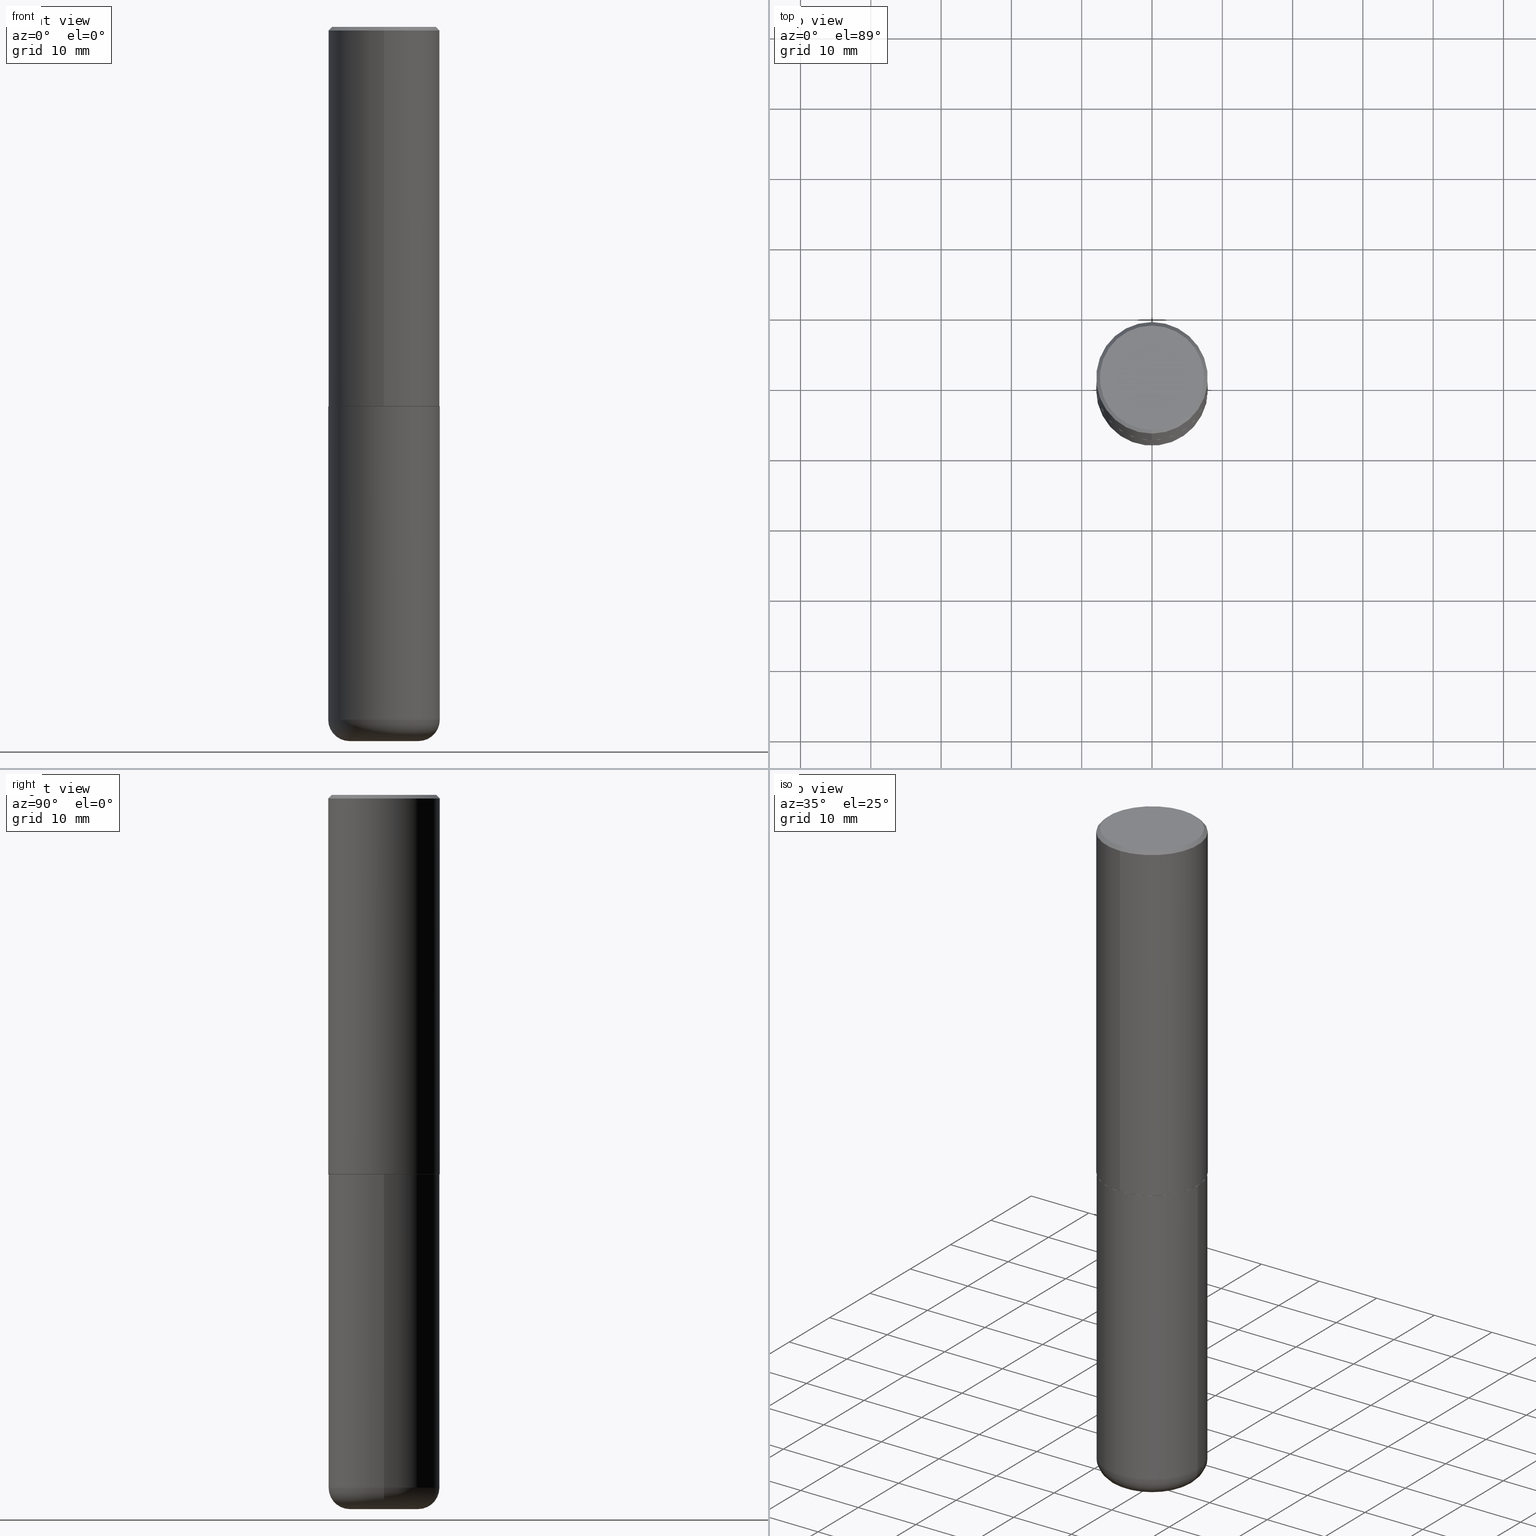
[diagram: canonical four-view strip — front | top / right | iso, engineering-drawing reading convention]
A machine part, canonical four-view strip (front | top / right | iso — engineering-drawing reading convention). The complete STEP part file that produces these views, byte-faithful:
ISO-10303-21;
HEADER;
FILE_DESCRIPTION (( 'STEP AP203' ),
    '1' );
FILE_NAME ('37614.STEP',
    '2024-03-02T05:58:51',
    ( '' ),
    ( '' ),
    'SwSTEP 2.0',
    'SolidWorks 2023',
    '' );
FILE_SCHEMA (( 'CONFIG_CONTROL_DESIGN' ));
ENDSEC;

DATA;
#1 = TOROIDAL_SURFACE ( 'NONE', #229, 0.1925000000000000044, 0.1200000000000001898 ) ;
#2 = CIRCLE ( 'NONE', #113, 0.3125000000000000000 ) ;
#3 = CARTESIAN_POINT ( 'NONE',  ( -0.1925000000000000044, -1.196231606724774300E-14, -4.000000000000000888 ) ) ;
#4 = DIRECTION ( 'NONE',  ( 1.000000000000000000, -6.982962677686276177E-15, 0.000000000000000000 ) ) ;
#5 = CIRCLE ( 'NONE', #230, 0.1925000000000000044 ) ;
#6 = ORIENTED_EDGE ( 'NONE', *, *, #251, .F. ) ;
#7 = DIRECTION ( 'NONE',  ( 1.000000000000000000, -6.982962677686269077E-15, 0.000000000000000000 ) ) ;
#8 = MANIFOLD_SOLID_BREP ( 'Body-Move/Copy2[2]', #398 ) ;
#9 = DIRECTION ( 'NONE',  ( -2.445468806185136597E-29, 3.491481338843145583E-15, 1.000000000000000000 ) ) ;
#10 = DATE_AND_TIME ( #111, #238 ) ;
#11 = DIRECTION ( 'NONE',  ( -2.444852431726452894E-29, 3.492364022149836358E-15, 1.000000000000000000 ) ) ;
#12 = PERSON_AND_ORGANIZATION ( #314, #163 ) ;
#13 = CC_DESIGN_DATE_AND_TIME_ASSIGNMENT ( #23, #270, ( #97 ) ) ;
#14 = CIRCLE ( 'NONE', #112, 0.3125000000000000000 ) ;
#15 = APPROVAL_PERSON_ORGANIZATION ( #122, #67, #94 ) ;
#16 = EDGE_LOOP ( 'NONE', ( #240, #408, #258, #337 ) ) ;
#17 = DIRECTION ( 'NONE',  ( -6.982962677686265922E-15, -1.000000000000000000, 3.507991003100177457E-15 ) ) ;
#18 = DATE_AND_TIME ( #198, #46 ) ;
#19 = ORIENTED_EDGE ( 'NONE', *, *, #306, .T. ) ;
#20 = ORIENTED_EDGE ( 'NONE', *, *, #247, .T. ) ;
#21 = AXIS2_PLACEMENT_3D ( 'NONE', #295, #11, #256 ) ;
#22 = AXIS2_PLACEMENT_3D ( 'NONE', #58, #183, #125 ) ;
#23 = DATE_AND_TIME ( #308, #144 ) ;
#24 = EDGE_CURVE ( 'NONE', #237, #273, #184, .T. ) ;
#25 = ORIENTED_EDGE ( 'NONE', *, *, #161, .F. ) ;
#26 = DIRECTION ( 'NONE',  ( -6.982962677686265133E-15, -1.000000000000000000, 3.492364022149836753E-15 ) ) ;
#27 = ADVANCED_FACE ( 'NONE', ( #317 ), #85, .T. ) ;
#28 = CIRCLE ( 'NONE', #280, 0.3114999999999999991 ) ;
#29 = DIRECTION ( 'NONE',  ( 0.000000000000000000, 0.000000000000000000, 1.000000000000000000 ) ) ;
#30 = DIRECTION ( 'NONE',  ( -6.982962677686265133E-15, -1.000000000000000000, 3.492364022149836358E-15 ) ) ;
#31 = CARTESIAN_POINT ( 'NONE',  ( -2.075300644325887493E-15, -0.2924999999999999822, 1.030311686326234990E-15 ) ) ;
#32 = DIRECTION ( 'NONE',  ( -2.445468806185136597E-29, 3.491481338843145583E-15, 1.000000000000000000 ) ) ;
#33 = ADVANCED_FACE ( 'NONE', ( #169 ), #48, .T. ) ;
#34 = COORDINATED_UNIVERSAL_TIME_OFFSET ( 5, 0, .BEHIND. ) ;
#35 = CARTESIAN_POINT ( 'NONE',  ( -2.150299018297948745E-46, 3.071607443834507134E-32, 8.795209847407834549E-18 ) ) ;
#36 = AXIS2_PLACEMENT_3D ( 'NONE', #369, #79, #284 ) ;
#37 = PERSON_AND_ORGANIZATION_ROLE ( 'design_supplier' ) ;
#38 = DIRECTION ( 'NONE',  ( 1.000000000000000000, -6.982962677686266711E-15, 4.876176775795936353E-29 ) ) ;
#39 = CC_DESIGN_PERSON_AND_ORGANIZATION_ASSIGNMENT ( #199, #170, ( #201 ) ) ;
#40 = ORIENTED_EDGE ( 'NONE', *, *, #390, .T. ) ;
#41 = DIRECTION ( 'NONE',  ( 4.937700262164541731E-15, 0.7071067811865442421, -0.7071067811865507924 ) ) ;
#42 = CALENDAR_DATE ( 2024, 2, 3 ) ;
#43 = CARTESIAN_POINT ( 'NONE',  ( 0.3125000000000000555, -1.572912343148836404E-14, -3.880000000000000338 ) ) ;
#44 = ORIENTED_EDGE ( 'NONE', *, *, #225, .F. ) ;
#45 = EDGE_CURVE ( 'NONE', #237, #50, #95, .T. ) ;
#46 = LOCAL_TIME ( 0, 58, 51.00000000000000000, #232 ) ;
#47 = CC_DESIGN_SECURITY_CLASSIFICATION ( #185, ( #385 ) ) ;
#48 = PLANE ( 'NONE',  #152 ) ;
#49 = ORIENTED_EDGE ( 'NONE', *, *, #190, .F. ) ;
#50 = VERTEX_POINT ( 'NONE', #403 ) ;
#51 = DATE_TIME_ROLE ( 'classification_date' ) ;
#52 = VERTEX_POINT ( 'NONE', #43 ) ;
#53 = DIRECTION ( 'NONE',  ( 1.000000000000000000, -6.982962677686269077E-15, 0.000000000000000000 ) ) ;
#54 = PLANE ( 'NONE',  #384 ) ;
#55 = CARTESIAN_POINT ( 'NONE',  ( 2.042516583223232540E-15, 0.2924999999999999822, -1.017118871555123169E-15 ) ) ;
#56 = CARTESIAN_POINT ( 'NONE',  ( 1.854023762560946993E-29, -2.531905987449679755E-14, -4.000000000000000000 ) ) ;
#57 = ORIENTED_EDGE ( 'NONE', *, *, #316, .T. ) ;
#58 = CARTESIAN_POINT ( 'NONE',  ( 9.488418967998330085E-29, -1.354694759471140570E-14, -3.880000000000000338 ) ) ;
#59 = CARTESIAN_POINT ( 'NONE',  ( 4.889704863452922148E-31, -6.984728044299695791E-17, -0.02000000000000006981 ) ) ;
#60 = CIRCLE ( 'NONE', #272, 0.3125000000000000000 ) ;
#61 = ORIENTED_EDGE ( 'NONE', *, *, #190, .T. ) ;
#62 = DIRECTION ( 'NONE',  ( -2.445468806185136597E-29, 3.491481338843145583E-15, 1.000000000000000000 ) ) ;
#63 = EDGE_LOOP ( 'NONE', ( #44, #6, #19, #374 ) ) ;
#64 = FACE_OUTER_BOUND ( 'NONE', #150, .T. ) ;
#65 = APPROVAL_PERSON_ORGANIZATION ( #266, #165, #338 ) ;
#66 = DIRECTION ( 'NONE',  ( -2.444852431726452894E-29, 3.492364022149836358E-15, 1.000000000000000000 ) ) ;
#67 = APPROVAL ( #241, 'UNSPECIFIED' ) ;
#68 = CARTESIAN_POINT ( 'NONE',  ( 5.196621213143414147E-29, -7.419397845041682046E-15, -2.124999999999999556 ) ) ;
#69 = ADVANCED_FACE ( 'NONE', ( #370 ), #267, .T. ) ;
#70 = CIRCLE ( 'NONE', #124, 0.1200000000000001482 ) ;
#71 = CONICAL_SURFACE ( 'NONE', #414, 0.3125000000000000000, 0.7853981633974471688 ) ;
#72 = ADVANCED_FACE ( 'NONE', ( #413 ), #221, .T. ) ;
#73 = PERSON_AND_ORGANIZATION ( #314, #163 ) ;
#74 = AXIS2_PLACEMENT_3D ( 'NONE', #200, #172, #292 ) ;
#75 = CIRCLE ( 'NONE', #327, 0.3125000000000000000 ) ;
#76 = VERTEX_POINT ( 'NONE', #93 ) ;
#77 = DIRECTION ( 'NONE',  ( 6.982962677686265922E-15, 1.000000000000000000, -3.492364022149836358E-15 ) ) ;
#78 = ORIENTED_EDGE ( 'NONE', *, *, #285, .F. ) ;
#79 = DIRECTION ( 'NONE',  ( -2.444852431726452894E-29, 3.492364022149836358E-15, 1.000000000000000000 ) ) ;
#80 = DIRECTION ( 'NONE',  ( -2.444852431726452894E-29, 3.492364022149836358E-15, 1.000000000000000000 ) ) ;
#81 = PERSON_AND_ORGANIZATION ( #314, #163 ) ;
#82 = CARTESIAN_POINT ( 'NONE',  ( 0.000000000000000000, 0.000000000000000000, 0.000000000000000000 ) ) ;
#83 = ORIENTED_EDGE ( 'NONE', *, *, #194, .T. ) ;
#84 = VECTOR ( 'NONE', #41, 39.37007874015748143 ) ;
#85 = CYLINDRICAL_SURFACE ( 'NONE', #195, 0.3125000000000000000 ) ;
#86 = ORIENTED_EDGE ( 'NONE', *, *, #259, .T. ) ;
#87 = CC_DESIGN_PERSON_AND_ORGANIZATION_ASSIGNMENT ( #145, #300, ( #185 ) ) ;
#88 = ADVANCED_FACE ( 'NONE', ( #218 ), #98, .F. ) ;
#89 = LINE ( 'NONE', #234, #341 ) ;
#90 = ORIENTED_EDGE ( 'NONE', *, *, #417, .T. ) ;
#91 = DIRECTION ( 'NONE',  ( 1.000000000000000000, 0.000000000000000000, 0.000000000000000000 ) ) ;
#92 = DIRECTION ( 'NONE',  ( -2.445468806185136597E-29, 3.491481338843145583E-15, 1.000000000000000000 ) ) ;
#93 = CARTESIAN_POINT ( 'NONE',  ( -0.3125000000000000000, -8.262726670626231579E-15, -2.124999999999999556 ) ) ;
#94 = APPROVAL_ROLE ( '' ) ;
#95 = CIRCLE ( 'NONE', #21, 0.3125000000000002776 ) ;
#96 = APPROVAL_PERSON_ORGANIZATION ( #12, #246, #339 ) ;
#97 = PRODUCT_DEFINITION ( 'UNKNOWN', '', #385, #336 ) ;
#98 = PLANE ( 'NONE',  #311 ) ;
#99 = DIRECTION ( 'NONE',  ( -2.444852431726452614E-29, 3.492364022149836358E-15, 1.000000000000000000 ) ) ;
#100 = CARTESIAN_POINT ( 'NONE',  ( 0.000000000000000000, 0.000000000000000000, 0.000000000000000000 ) ) ;
#101 = CARTESIAN_POINT ( 'NONE',  ( 4.889704863452922148E-31, -6.984728044299695791E-17, -0.02000000000000006981 ) ) ;
#102 = VECTOR ( 'NONE', #123, 39.37007874015748143 ) ;
#103 = CIRCLE ( 'NONE', #377, 0.3125000000000002776 ) ;
#104 = DIRECTION ( 'NONE',  ( -6.982962677686265922E-15, -1.000000000000000000, 3.496765431890253764E-15 ) ) ;
#105 = EDGE_CURVE ( 'NONE', #228, #211, #70, .T. ) ;
#106 = DIRECTION ( 'NONE',  ( -2.445468806185136597E-29, 3.491481338843145583E-15, 1.000000000000000000 ) ) ;
#107 = CIRCLE ( 'NONE', #255, 0.2924999999999999822 ) ;
#108 = ADVANCED_FACE ( 'NONE', ( #64 ), #54, .F. ) ;
#109 = PRODUCT_RELATED_PRODUCT_CATEGORY ( 'detail', '', ( #201 ) ) ;
#110 = CARTESIAN_POINT ( 'NONE',  ( 5.195311417418712329E-29, -7.421273547068401324E-15, -2.124999999999999556 ) ) ;
#111 = CALENDAR_DATE ( 2024, 2, 3 ) ;
#112 = AXIS2_PLACEMENT_3D ( 'NONE', #59, #80, #379 ) ;
#113 = AXIS2_PLACEMENT_3D ( 'NONE', #399, #92, #386 ) ;
#114 = CARTESIAN_POINT ( 'NONE',  ( 0.3125000000000000000, -9.601573681818640393E-15, -2.124999999999999556 ) ) ;
#115 = CARTESIAN_POINT ( 'NONE',  ( -2.175192874099219874E-15, -0.3115000000000074376, -2.124999999999998668 ) ) ;
#116 = SECURITY_CLASSIFICATION_LEVEL ( 'unclassified' ) ;
#117 = CC_DESIGN_PERSON_AND_ORGANIZATION_ASSIGNMENT ( #396, #37, ( #385 ) ) ;
#118 = EDGE_LOOP ( 'NONE', ( #213, #236, #214, #297 ) ) ;
#119 = DIRECTION ( 'NONE',  ( -6.982962677686266711E-15, -1.000000000000000000, 3.491481338843145583E-15 ) ) ;
#120 = AXIS2_PLACEMENT_3D ( 'NONE', #393, #32, #7 ) ;
#121 = ORIENTED_EDGE ( 'NONE', *, *, #390, .F. ) ;
#122 = PERSON_AND_ORGANIZATION ( #314, #163 ) ;
#123 = DIRECTION ( 'NONE',  ( -2.444852431726452614E-29, 3.492364022149836358E-15, 1.000000000000000000 ) ) ;
#124 = AXIS2_PLACEMENT_3D ( 'NONE', #208, #303, #400 ) ;
#125 = DIRECTION ( 'NONE',  ( 1.000000000000000000, -6.982962677686265922E-15, 4.883557194083112340E-29 ) ) ;
#126 = CC_DESIGN_APPROVAL ( #246, ( #97 ) ) ;
#127 = EDGE_LOOP ( 'NONE', ( #49, #78 ) ) ;
#128 = CARTESIAN_POINT ( 'NONE',  ( 0.000000000000000000, 0.000000000000000000, 0.000000000000000000 ) ) ;
#129 = DIRECTION ( 'NONE',  ( 6.982962677686265133E-15, 1.000000000000000000, -3.496765431890256920E-15 ) ) ;
#130 = CARTESIAN_POINT ( 'NONE',  ( -0.3125000000000000555, -1.132650154546109262E-14, -3.880000000000000338 ) ) ;
#131 = ADVANCED_FACE ( 'NONE', ( #307 ), #1, .T. ) ;
#132 = CIRCLE ( 'NONE', #120, 0.1925000000000000044 ) ;
#133 = CC_DESIGN_APPROVAL ( #165, ( #185 ) ) ;
#134 = FACE_OUTER_BOUND ( 'NONE', #309, .T. ) ;
#135 = DIRECTION ( 'NONE',  ( -2.444852431726452894E-29, 3.492364022149836358E-15, 1.000000000000000000 ) ) ;
#136 = CARTESIAN_POINT ( 'NONE',  ( 0.1925000000000000044, -1.531014567082719057E-14, -4.000000000000000888 ) ) ;
#137 = ADVANCED_FACE ( 'NONE', ( #404 ), #189, .T. ) ;
#138 = CARTESIAN_POINT ( 'NONE',  ( 2.182175836776958741E-15, 0.3124999999999999445, -0.02000000000000116268 ) ) ;
#139 = DIRECTION ( 'NONE',  ( -6.982962677686265133E-15, -1.000000000000000000, 3.492364022149836753E-15 ) ) ;
#140 = APPROVAL_DATE_TIME ( #18, #67 ) ;
#141 = DIRECTION ( 'NONE',  ( -6.982962677686265922E-15, -1.000000000000000000, 3.507991003100177457E-15 ) ) ;
#142 = DIRECTION ( 'NONE',  ( -1.000000000000000000, 6.982962677686265922E-15, -4.876176775795935793E-29 ) ) ;
#143 = APPROVAL_STATUS ( 'not_yet_approved' ) ;
#144 = LOCAL_TIME ( 0, 58, 51.00000000000000000, #34 ) ;
#145 = PERSON_AND_ORGANIZATION ( #314, #163 ) ;
#146 = ORIENTED_EDGE ( 'NONE', *, *, #375, .F. ) ;
#147 = EDGE_LOOP ( 'NONE', ( #175, #415, #40, #25 ) ) ;
#148 = CARTESIAN_POINT ( 'NONE',  ( -0.3125000000000000000, 2.220446049250313081E-15, -1.537167215704658232E-29 ) ) ;
#149 = EDGE_CURVE ( 'NONE', #261, #50, #265, .T. ) ;
#150 = EDGE_LOOP ( 'NONE', ( #373, #416 ) ) ;
#151 = APPROVAL_DATE_TIME ( #254, #165 ) ;
#152 = AXIS2_PLACEMENT_3D ( 'NONE', #56, #209, #380 ) ;
#153 = VECTOR ( 'NONE', #224, 39.37007874015748143 ) ;
#154 = DIRECTION ( 'NONE',  ( 2.444852431726452333E-29, -3.492364022149836358E-15, -1.000000000000000000 ) ) ;
#155 = ORIENTED_EDGE ( 'NONE', *, *, #149, .F. ) ;
#156 = DIRECTION ( 'NONE',  ( -6.982962677686265922E-15, -1.000000000000000000, 3.492364022149836358E-15 ) ) ;
#157 = CARTESIAN_POINT ( 'NONE',  ( 9.488418967998330085E-29, -1.354694759471140570E-14, -3.880000000000000338 ) ) ;
#158 = LOCAL_TIME ( 0, 58, 51.00000000000000000, #405 ) ;
#159 = EDGE_LOOP ( 'NONE', ( #83, #57 ) ) ;
#160 = ORIENTED_EDGE ( 'NONE', *, *, #375, .T. ) ;
#161 = EDGE_CURVE ( 'NONE', #273, #271, #14, .T. ) ;
#162 = CARTESIAN_POINT ( 'NONE',  ( 2.112346210000095838E-15, 0.2924999999999999822, -1.012721266631419361E-15 ) ) ;
#163 = ORGANIZATION ( 'UNSPECIFIED', 'UNSPECIFIED', '' ) ;
#164 = CARTESIAN_POINT ( 'NONE',  ( 2.216893335571564642E-15, 0.3114999999999925606, -2.125000000000000888 ) ) ;
#165 = APPROVAL ( #143, 'UNSPECIFIED' ) ;
#166 = AXIS2_PLACEMENT_3D ( 'NONE', #282, #320, #30 ) ;
#167 = ADVANCED_FACE ( 'NONE', ( #344 ), #260, .F. ) ;
#168 = ORIENTED_EDGE ( 'NONE', *, *, #360, .T. ) ;
#169 = FACE_OUTER_BOUND ( 'NONE', #127, .T. ) ;
#170 = PERSON_AND_ORGANIZATION_ROLE ( 'design_owner' ) ;
#171 = ORIENTED_EDGE ( 'NONE', *, *, #329, .T. ) ;
#172 = DIRECTION ( 'NONE',  ( -2.445468806185136597E-29, 3.491481338843145583E-15, 1.000000000000000000 ) ) ;
#173 = DIMENSIONAL_EXPONENTS ( 1.000000000000000000, 0.000000000000000000, 0.000000000000000000, 0.000000000000000000, 0.000000000000000000, 0.000000000000000000, 0.000000000000000000 ) ;
#174 = CLOSED_SHELL ( 'NONE', ( #69, #186, #88, #27, #131, #33 ) ) ;
#175 = ORIENTED_EDGE ( 'NONE', *, *, #24, .F. ) ;
#176 = EDGE_CURVE ( 'NONE', #211, #76, #205, .T. ) ;
#177 = ORIENTED_EDGE ( 'NONE', *, *, #24, .T. ) ;
#178 = DIRECTION ( 'NONE',  ( -6.982962677686265133E-15, -1.000000000000000000, 3.492364022149836358E-15 ) ) ;
#179 = VERTEX_POINT ( 'NONE', #114 ) ;
#180 = CARTESIAN_POINT ( 'NONE',  ( 5.195311417418712329E-29, -7.421273547068401324E-15, -2.124999999999999556 ) ) ;
#181 = CC_DESIGN_PERSON_AND_ORGANIZATION_ASSIGNMENT ( #73, #193, ( #97 ) ) ;
#182 = EDGE_LOOP ( 'NONE', ( #171, #86, #146, #155 ) ) ;
#183 = DIRECTION ( 'NONE',  ( -2.445468806185136597E-29, 3.491481338843145583E-15, 1.000000000000000000 ) ) ;
#184 = LINE ( 'NONE', #313, #102 ) ;
#185 = SECURITY_CLASSIFICATION ( '', '', #116 ) ;
#186 = ADVANCED_FACE ( 'NONE', ( #134 ), #217, .T. ) ;
#187 = DIRECTION ( 'NONE',  ( 6.982962677686265133E-15, 1.000000000000000000, -3.496765431890256920E-15 ) ) ;
#188 = DIRECTION ( 'NONE',  ( -4.851104656540957964E-15, -0.7071067811865491270, -0.7071067811865459074 ) ) ;
#189 = CONICAL_SURFACE ( 'NONE', #278, 0.3114999999999999991, 0.7853981633975507526 ) ;
#190 = EDGE_CURVE ( 'NONE', #239, #228, #5, .T. ) ;
#191 = CARTESIAN_POINT ( 'NONE',  ( 9.488418967998330085E-29, -1.354694759471140570E-14, -3.880000000000000338 ) ) ;
#192 = DIRECTION ( 'NONE',  ( 1.000000000000000000, -6.982962677686265133E-15, 0.000000000000000000 ) ) ;
#193 = PERSON_AND_ORGANIZATION_ROLE ( 'creator' ) ;
#194 = EDGE_CURVE ( 'NONE', #179, #76, #60, .T. ) ;
#195 = AXIS2_PLACEMENT_3D ( 'NONE', #82, #206, #38 ) ;
#196 =( GEOMETRIC_REPRESENTATION_CONTEXT ( 3 ) GLOBAL_UNCERTAINTY_ASSIGNED_CONTEXT ( ( #331 ) ) GLOBAL_UNIT_ASSIGNED_CONTEXT ( ( #264, #253, #298 ) ) REPRESENTATION_CONTEXT ( 'NONE', 'WORKASPACE' ) );
#197 = PRODUCT_DEFINITION_SHAPE ( 'NONE', 'NONE',  #97 ) ;
#198 = CALENDAR_DATE ( 2024, 2, 3 ) ;
#199 = PERSON_AND_ORGANIZATION ( #314, #163 ) ;
#200 = CARTESIAN_POINT ( 'NONE',  ( 0.000000000000000000, 0.000000000000000000, 0.000000000000000000 ) ) ;
#201 = PRODUCT ( '37614', '37614', '', ( #382 ) ) ;
#202 = ORIENTED_EDGE ( 'NONE', *, *, #149, .T. ) ;
#203 = ADVANCED_FACE ( 'NONE', ( #361 ), #71, .T. ) ;
#204 = ORIENTED_EDGE ( 'NONE', *, *, #316, .F. ) ;
#205 = LINE ( 'NONE', #148, #391 ) ;
#206 = DIRECTION ( 'NONE',  ( -2.445468806185136597E-29, 3.491481338843145583E-15, 1.000000000000000000 ) ) ;
#207 = APPLICATION_CONTEXT ( 'configuration controlled 3d designs of mechanical parts and assemblies' ) ;
#208 = CARTESIAN_POINT ( 'NONE',  ( -0.1925000000000000044, -1.217915282837321360E-14, -3.880000000000000338 ) ) ;
#209 = DIRECTION ( 'NONE',  ( 2.438088387897960049E-29, -3.491481338843145188E-15, -1.000000000000000000 ) ) ;
#210 = CARTESIAN_POINT ( 'NONE',  ( -2.175192874099219874E-15, -0.3115000000000074376, -2.124999999999998668 ) ) ;
#211 = VERTEX_POINT ( 'NONE', #130 ) ;
#212 = DIRECTION ( 'NONE',  ( -2.444852431726452894E-29, 3.492364022149836358E-15, 1.000000000000000000 ) ) ;
#213 = ORIENTED_EDGE ( 'NONE', *, *, #334, .T. ) ;
#214 = ORIENTED_EDGE ( 'NONE', *, *, #194, .F. ) ;
#215 = DIRECTION ( 'NONE',  ( 1.000000000000000000, -6.982962677686265922E-15, 4.883557194083112340E-29 ) ) ;
#216 = CARTESIAN_POINT ( 'NONE',  ( 5.192866564986985411E-29, -7.417781183046251262E-15, -2.123999999999999666 ) ) ;
#217 = TOROIDAL_SURFACE ( 'NONE', #22, 0.1925000000000000044, 0.1200000000000001898 ) ;
#218 = FACE_OUTER_BOUND ( 'NONE', #159, .T. ) ;
#219 = CARTESIAN_POINT ( 'NONE',  ( 4.889704863452922148E-31, -6.984728044299695791E-17, -0.02000000000000006981 ) ) ;
#220 = CARTESIAN_POINT ( 'NONE',  ( 2.182175836776958741E-15, 0.3124999999999999445, -0.02000000000000116268 ) ) ;
#221 = CONICAL_SURFACE ( 'NONE', #326, 0.3125000000000000000, 0.7853981633974471688 ) ;
#222 = AXIS2_PLACEMENT_3D ( 'NONE', #100, #29, #91 ) ;
#223 = CARTESIAN_POINT ( 'NONE',  ( 2.220446049250340297E-15, 0.3124999999999928391, -2.124000000000000554 ) ) ;
#224 = DIRECTION ( 'NONE',  ( -2.445468806185136877E-29, 3.491481338843145188E-15, 1.000000000000000000 ) ) ;
#225 = EDGE_CURVE ( 'NONE', #323, #271, #276, .T. ) ;
#226 = LENGTH_MEASURE_WITH_UNIT ( LENGTH_MEASURE( 0.02539999999999999897 ), #283 );
#227 = DIRECTION ( 'NONE',  ( -2.444852431726452894E-29, 3.492364022149836358E-15, 1.000000000000000000 ) ) ;
#228 = VERTEX_POINT ( 'NONE', #3 ) ;
#229 = AXIS2_PLACEMENT_3D ( 'NONE', #157, #358, #215 ) ;
#230 = AXIS2_PLACEMENT_3D ( 'NONE', #349, #244, #53 ) ;
#231 = ORIENTED_EDGE ( 'NONE', *, *, #235, .F. ) ;
#232 = COORDINATED_UNIVERSAL_TIME_OFFSET ( 5, 0, .BEHIND. ) ;
#233 = ORIENTED_EDGE ( 'NONE', *, *, #395, .F. ) ;
#234 = CARTESIAN_POINT ( 'NONE',  ( 2.213340621892763743E-15, 0.3114999999999925606, -2.125000000000000888 ) ) ;
#235 = EDGE_CURVE ( 'NONE', #271, #273, #75, .T. ) ;
#236 = ORIENTED_EDGE ( 'NONE', *, *, #176, .T. ) ;
#237 = VERTEX_POINT ( 'NONE', #223 ) ;
#238 = LOCAL_TIME ( 0, 58, 51.00000000000000000, #402 ) ;
#239 = VERTEX_POINT ( 'NONE', #136 ) ;
#240 = ORIENTED_EDGE ( 'NONE', *, *, #322, .F. ) ;
#241 = APPROVAL_STATUS ( 'not_yet_approved' ) ;
#242 = VECTOR ( 'NONE', #346, 39.37007874015748143 ) ;
#243 = CONICAL_SURFACE ( 'NONE', #36, 0.3114999999999999991, 0.7853981633975507526 ) ;
#244 = DIRECTION ( 'NONE',  ( -2.445468806185136597E-29, 3.491481338843145583E-15, 1.000000000000000000 ) ) ;
#245 = CARTESIAN_POINT ( 'NONE',  ( -2.182175836776959136E-15, -0.3125000000000001665, 1.091363756921824478E-15 ) ) ;
#246 = APPROVAL ( #257, 'UNSPECIFIED' ) ;
#247 = EDGE_CURVE ( 'NONE', #289, #261, #319, .T. ) ;
#248 = DIRECTION ( 'NONE',  ( 1.000000000000000000, -6.982962677686269077E-15, 0.000000000000000000 ) ) ;
#249 = AXIS2_PLACEMENT_3D ( 'NONE', #305, #119, #4 ) ;
#250 = AXIS2_PLACEMENT_3D ( 'NONE', #128, #351, #178 ) ;
#251 = EDGE_CURVE ( 'NONE', #378, #323, #107, .T. ) ;
#252 = CYLINDRICAL_SURFACE ( 'NONE', #250, 0.3125000000000001665 ) ;
#253 =( NAMED_UNIT ( * ) PLANE_ANGLE_UNIT ( ) SI_UNIT ( $, .RADIAN. ) );
#254 = DATE_AND_TIME ( #42, #321 ) ;
#255 = AXIS2_PLACEMENT_3D ( 'NONE', #35, #135, #26 ) ;
#256 = DIRECTION ( 'NONE',  ( -6.982962677686265922E-15, -1.000000000000000000, 3.496765431890253764E-15 ) ) ;
#257 = APPROVAL_STATUS ( 'not_yet_approved' ) ;
#258 = ORIENTED_EDGE ( 'NONE', *, *, #235, .T. ) ;
#259 = EDGE_CURVE ( 'NONE', #289, #237, #89, .T. ) ;
#260 = PLANE ( 'NONE',  #299 ) ;
#261 = VERTEX_POINT ( 'NONE', #115 ) ;
#262 = ORIENTED_EDGE ( 'NONE', *, *, #285, .T. ) ;
#263 = ORIENTED_EDGE ( 'NONE', *, *, #105, .F. ) ;
#264 =( CONVERSION_BASED_UNIT ( 'INCH', #226 ) LENGTH_UNIT ( ) NAMED_UNIT ( #173 ) );
#265 = LINE ( 'NONE', #210, #242 ) ;
#266 = PERSON_AND_ORGANIZATION ( #314, #163 ) ;
#267 = CYLINDRICAL_SURFACE ( 'NONE', #74, 0.3125000000000000000 ) ;
#268 = CIRCLE ( 'NONE', #249, 0.1200000000000001482 ) ;
#269 = ADVANCED_FACE ( 'NONE', ( #274 ), #243, .T. ) ;
#270 = DATE_TIME_ROLE ( 'creation_date' ) ;
#271 = VERTEX_POINT ( 'NONE', #333 ) ;
#272 = AXIS2_PLACEMENT_3D ( 'NONE', #68, #106, #281 ) ;
#273 = VERTEX_POINT ( 'NONE', #138 ) ;
#274 = FACE_OUTER_BOUND ( 'NONE', #335, .T. ) ;
#275 = ORIENTED_EDGE ( 'NONE', *, *, #360, .F. ) ;
#276 = LINE ( 'NONE', #387, #347 ) ;
#277 = MANIFOLD_SOLID_BREP ( 'Body-Move/Copy2[1]', #174 ) ;
#278 = AXIS2_PLACEMENT_3D ( 'NONE', #418, #212, #17 ) ;
#279 = LINE ( 'NONE', #245, #301 ) ;
#280 = AXIS2_PLACEMENT_3D ( 'NONE', #110, #227, #141 ) ;
#281 = DIRECTION ( 'NONE',  ( 1.000000000000000000, -6.982962677686265133E-15, 0.000000000000000000 ) ) ;
#282 = CARTESIAN_POINT ( 'NONE',  ( 0.000000000000000000, 0.000000000000000000, 0.000000000000000000 ) ) ;
#283 =( LENGTH_UNIT ( ) NAMED_UNIT ( * ) SI_UNIT ( $, .METRE. ) );
#284 = DIRECTION ( 'NONE',  ( -6.982962677686265922E-15, -1.000000000000000000, 3.507991003100177457E-15 ) ) ;
#285 = EDGE_CURVE ( 'NONE', #228, #239, #132, .T. ) ;
#286 = CARTESIAN_POINT ( 'NONE',  ( 4.889704863452922148E-31, -6.984728044299695791E-17, -0.02000000000000006981 ) ) ;
#287 = APPLICATION_CONTEXT ( 'configuration controlled 3d designs of mechanical parts and assemblies' ) ;
#288 = CIRCLE ( 'NONE', #353, 0.3125000000000000000 ) ;
#289 = VERTEX_POINT ( 'NONE', #164 ) ;
#290 = CARTESIAN_POINT ( 'NONE',  ( 5.196621213143414147E-29, -7.419397845041682046E-15, -2.124999999999999556 ) ) ;
#291 = ADVANCED_BREP_SHAPE_REPRESENTATION ( '37614', ( #277, #8, #222 ), #196 ) ;
#292 = DIRECTION ( 'NONE',  ( 1.000000000000000000, -6.982962677686266711E-15, 4.876176775795936353E-29 ) ) ;
#293 = CARTESIAN_POINT ( 'NONE',  ( 5.196621213143414147E-29, -7.419397845041682046E-15, -2.124999999999999556 ) ) ;
#294 = PERSON_AND_ORGANIZATION_ROLE ( 'creator' ) ;
#295 = CARTESIAN_POINT ( 'NONE',  ( 5.192866564986985411E-29, -7.417781183046251262E-15, -2.123999999999999666 ) ) ;
#296 = APPLICATION_PROTOCOL_DEFINITION ( 'international standard', 'config_control_design', 1994, #287 ) ;
#297 = ORIENTED_EDGE ( 'NONE', *, *, #417, .F. ) ;
#298 =( NAMED_UNIT ( * ) SI_UNIT ( $, .STERADIAN. ) SOLID_ANGLE_UNIT ( ) );
#299 = AXIS2_PLACEMENT_3D ( 'NONE', #55, #154, #77 ) ;
#300 = PERSON_AND_ORGANIZATION_ROLE ( 'classification_officer' ) ;
#301 = VECTOR ( 'NONE', #99, 39.37007874015748143 ) ;
#302 = CARTESIAN_POINT ( 'NONE',  ( -2.150299018297948745E-46, 3.071607443834507134E-32, 8.795209847407834549E-18 ) ) ;
#303 = DIRECTION ( 'NONE',  ( 7.105427357601001859E-15, 1.000000000000000000, -3.491481338843145583E-15 ) ) ;
#304 = DATE_AND_TIME ( #342, #158 ) ;
#305 = CARTESIAN_POINT ( 'NONE',  ( 0.1925000000000000044, -1.489116791016601393E-14, -3.880000000000000338 ) ) ;
#306 = EDGE_CURVE ( 'NONE', #378, #273, #357, .T. ) ;
#307 = FACE_OUTER_BOUND ( 'NONE', #407, .T. ) ;
#308 = CALENDAR_DATE ( 2024, 2, 3 ) ;
#309 = EDGE_LOOP ( 'NONE', ( #61, #348, #412, #275 ) ) ;
#310 = DIRECTION ( 'NONE',  ( -2.444852431726452333E-29, 3.492364022149836358E-15, 1.000000000000000000 ) ) ;
#311 = AXIS2_PLACEMENT_3D ( 'NONE', #290, #366, #142 ) ;
#312 = AXIS2_PLACEMENT_3D ( 'NONE', #397, #394, #372 ) ;
#313 = CARTESIAN_POINT ( 'NONE',  ( 2.220446049250313475E-15, 0.3125000000000001665, -1.091363756921824478E-15 ) ) ;
#314 = PERSON ( 'UNSPECIFIED', 'UNSPECIFIED', 'UNSPECIFIED', ('UNSPECIFIED'), ('UNSPECIFIED'), ('UNSPECIFIED') ) ;
#315 = ORIENTED_EDGE ( 'NONE', *, *, #322, .T. ) ;
#316 = EDGE_CURVE ( 'NONE', #76, #179, #288, .T. ) ;
#317 = FACE_OUTER_BOUND ( 'NONE', #381, .T. ) ;
#318 = APPLICATION_PROTOCOL_DEFINITION ( 'international standard', 'config_control_design', 1994, #207 ) ;
#319 = CIRCLE ( 'NONE', #312, 0.3114999999999999991 ) ;
#320 = DIRECTION ( 'NONE',  ( -2.444852431726452894E-29, 3.492364022149836358E-15, 1.000000000000000000 ) ) ;
#321 = LOCAL_TIME ( 0, 58, 51.00000000000000000, #409 ) ;
#322 = EDGE_CURVE ( 'NONE', #323, #378, #365, .T. ) ;
#323 = VERTEX_POINT ( 'NONE', #31 ) ;
#324 = CYLINDRICAL_SURFACE ( 'NONE', #166, 0.3125000000000001665 ) ;
#325 = DIRECTION ( 'NONE',  ( -6.982962677686265133E-15, -1.000000000000000000, 3.496765431890256920E-15 ) ) ;
#326 = AXIS2_PLACEMENT_3D ( 'NONE', #101, #383, #187 ) ;
#327 = AXIS2_PLACEMENT_3D ( 'NONE', #219, #356, #325 ) ;
#328 = CC_DESIGN_DATE_AND_TIME_ASSIGNMENT ( #10, #51, ( #185 ) ) ;
#329 = EDGE_CURVE ( 'NONE', #261, #289, #28, .T. ) ;
#330 = DIRECTION ( 'NONE',  ( -2.444852431726452894E-29, 3.492364022149836358E-15, 1.000000000000000000 ) ) ;
#331 = UNCERTAINTY_MEASURE_WITH_UNIT (LENGTH_MEASURE( 1.000000000000000082E-05 ), #264, 'distance_accuracy_value', 'NONE');
#332 = AXIS2_PLACEMENT_3D ( 'NONE', #191, #62, #248 ) ;
#333 = CARTESIAN_POINT ( 'NONE',  ( -2.143905624303602824E-15, -0.3125000000000000555, -0.01999999999999897693 ) ) ;
#334 = EDGE_CURVE ( 'NONE', #52, #211, #2, .T. ) ;
#335 = EDGE_LOOP ( 'NONE', ( #406, #20, #202, #343 ) ) ;
#336 = DESIGN_CONTEXT ( 'detailed design', #287, 'design' ) ;
#337 = ORIENTED_EDGE ( 'NONE', *, *, #306, .F. ) ;
#338 = APPROVAL_ROLE ( '' ) ;
#339 = APPROVAL_ROLE ( '' ) ;
#340 = ORIENTED_EDGE ( 'NONE', *, *, #176, .F. ) ;
#341 = VECTOR ( 'NONE', #401, 39.37007874015748143 ) ;
#342 = CALENDAR_DATE ( 2024, 2, 3 ) ;
#343 = ORIENTED_EDGE ( 'NONE', *, *, #45, .F. ) ;
#344 = FACE_OUTER_BOUND ( 'NONE', #368, .T. ) ;
#345 = ORIENTED_EDGE ( 'NONE', *, *, #251, .T. ) ;
#346 = DIRECTION ( 'NONE',  ( -4.937700262165053702E-15, -0.7071067811866175168, 0.7071067811864775177 ) ) ;
#347 = VECTOR ( 'NONE', #188, 39.37007874015748143 ) ;
#348 = ORIENTED_EDGE ( 'NONE', *, *, #105, .T. ) ;
#349 = CARTESIAN_POINT ( 'NONE',  ( 9.781875224740547508E-29, -1.396592535537258391E-14, -4.000000000000000888 ) ) ;
#350 = ADVANCED_FACE ( 'NONE', ( #355 ), #252, .T. ) ;
#351 = DIRECTION ( 'NONE',  ( -2.444852431726452894E-29, 3.492364022149836358E-15, 1.000000000000000000 ) ) ;
#352 = DIRECTION ( 'NONE',  ( -2.445468806185136877E-29, 3.491481338843145188E-15, 1.000000000000000000 ) ) ;
#353 = AXIS2_PLACEMENT_3D ( 'NONE', #293, #9, #192 ) ;
#354 = DIRECTION ( 'NONE',  ( 2.444852431726452894E-29, -3.492364022149836358E-15, -1.000000000000000000 ) ) ;
#355 = FACE_OUTER_BOUND ( 'NONE', #411, .T. ) ;
#356 = DIRECTION ( 'NONE',  ( -2.444852431726452894E-29, 3.492364022149836358E-15, 1.000000000000000000 ) ) ;
#357 = LINE ( 'NONE', #220, #84 ) ;
#358 = DIRECTION ( 'NONE',  ( -2.445468806185136597E-29, 3.491481338843145583E-15, 1.000000000000000000 ) ) ;
#359 = CC_DESIGN_PERSON_AND_ORGANIZATION_ASSIGNMENT ( #81, #294, ( #385 ) ) ;
#360 = EDGE_CURVE ( 'NONE', #239, #52, #268, .T. ) ;
#361 = FACE_OUTER_BOUND ( 'NONE', #16, .T. ) ;
#362 = FACE_OUTER_BOUND ( 'NONE', #147, .T. ) ;
#363 = AXIS2_PLACEMENT_3D ( 'NONE', #302, #330, #139 ) ;
#364 = APPROVAL_DATE_TIME ( #304, #246 ) ;
#365 = CIRCLE ( 'NONE', #363, 0.2924999999999999822 ) ;
#366 = DIRECTION ( 'NONE',  ( 2.438088387897960049E-29, -3.491481338843145188E-15, -1.000000000000000000 ) ) ;
#367 = ADVANCED_FACE ( 'NONE', ( #362 ), #324, .T. ) ;
#368 = EDGE_LOOP ( 'NONE', ( #345, #315 ) ) ;
#369 = CARTESIAN_POINT ( 'NONE',  ( 5.195311417418712329E-29, -7.421273547068401324E-15, -2.124999999999999556 ) ) ;
#370 = FACE_OUTER_BOUND ( 'NONE', #118, .T. ) ;
#371 = ORIENTED_EDGE ( 'NONE', *, *, #395, .T. ) ;
#372 = DIRECTION ( 'NONE',  ( -6.982962677686265922E-15, -1.000000000000000000, 3.507991003100177457E-15 ) ) ;
#373 = ORIENTED_EDGE ( 'NONE', *, *, #329, .F. ) ;
#374 = ORIENTED_EDGE ( 'NONE', *, *, #161, .T. ) ;
#375 = EDGE_CURVE ( 'NONE', #50, #237, #103, .T. ) ;
#376 = SHAPE_DEFINITION_REPRESENTATION ( #197, #291 ) ;
#377 = AXIS2_PLACEMENT_3D ( 'NONE', #216, #66, #104 ) ;
#378 = VERTEX_POINT ( 'NONE', #162 ) ;
#379 = DIRECTION ( 'NONE',  ( -6.982962677686265133E-15, -1.000000000000000000, 3.496765431890256920E-15 ) ) ;
#380 = DIRECTION ( 'NONE',  ( -1.000000000000000000, 6.982962677686265922E-15, -4.876176775795935793E-29 ) ) ;
#381 = EDGE_LOOP ( 'NONE', ( #340, #371, #90, #204 ) ) ;
#382 = MECHANICAL_CONTEXT ( 'NONE', #207, 'mechanical' ) ;
#383 = DIRECTION ( 'NONE',  ( 2.444852431726452894E-29, -3.492364022149836358E-15, -1.000000000000000000 ) ) ;
#384 = AXIS2_PLACEMENT_3D ( 'NONE', #180, #310, #156 ) ;
#385 = PRODUCT_DEFINITION_FORMATION_WITH_SPECIFIED_SOURCE ( 'ANY', '', #201, .NOT_KNOWN. ) ;
#386 = DIRECTION ( 'NONE',  ( 1.000000000000000000, -6.982962677686269077E-15, 0.000000000000000000 ) ) ;
#387 = CARTESIAN_POINT ( 'NONE',  ( -2.143905624303602824E-15, -0.3125000000000000555, -0.01999999999999897693 ) ) ;
#388 = LINE ( 'NONE', #389, #153 ) ;
#389 = CARTESIAN_POINT ( 'NONE',  ( 0.3125000000000000000, -2.182175836776958347E-15, 1.523805242436230075E-29 ) ) ;
#390 = EDGE_CURVE ( 'NONE', #50, #271, #279, .T. ) ;
#391 = VECTOR ( 'NONE', #352, 39.37007874015748143 ) ;
#392 = CC_DESIGN_APPROVAL ( #67, ( #385 ) ) ;
#393 = CARTESIAN_POINT ( 'NONE',  ( 9.781875224740547508E-29, -1.396592535537258391E-14, -4.000000000000000888 ) ) ;
#394 = DIRECTION ( 'NONE',  ( -2.444852431726452894E-29, 3.492364022149836358E-15, 1.000000000000000000 ) ) ;
#395 = EDGE_CURVE ( 'NONE', #211, #52, #410, .T. ) ;
#396 = PERSON_AND_ORGANIZATION ( #314, #163 ) ;
#397 = CARTESIAN_POINT ( 'NONE',  ( 5.195311417418712329E-29, -7.421273547068401324E-15, -2.124999999999999556 ) ) ;
#398 = CLOSED_SHELL ( 'NONE', ( #137, #350, #203, #72, #367, #269, #108, #167 ) ) ;
#399 = CARTESIAN_POINT ( 'NONE',  ( 9.488418967998330085E-29, -1.354694759471140570E-14, -3.880000000000000338 ) ) ;
#400 = DIRECTION ( 'NONE',  ( -1.000000000000000000, 7.105427357600998703E-15, 0.000000000000000000 ) ) ;
#401 = DIRECTION ( 'NONE',  ( 5.024295867788576727E-15, 0.7071067811866224018, 0.7071067811864726327 ) ) ;
#402 = COORDINATED_UNIVERSAL_TIME_OFFSET ( 5, 0, .BEHIND. ) ;
#403 = CARTESIAN_POINT ( 'NONE',  ( -2.182175836776908254E-15, -0.3125000000000077161, -2.123999999999998334 ) ) ;
#404 = FACE_OUTER_BOUND ( 'NONE', #182, .T. ) ;
#405 = COORDINATED_UNIVERSAL_TIME_OFFSET ( 5, 0, .BEHIND. ) ;
#406 = ORIENTED_EDGE ( 'NONE', *, *, #259, .F. ) ;
#407 = EDGE_LOOP ( 'NONE', ( #263, #262, #168, #233 ) ) ;
#408 = ORIENTED_EDGE ( 'NONE', *, *, #225, .T. ) ;
#409 = COORDINATED_UNIVERSAL_TIME_OFFSET ( 5, 0, .BEHIND. ) ;
#410 = CIRCLE ( 'NONE', #332, 0.3125000000000000000 ) ;
#411 = EDGE_LOOP ( 'NONE', ( #160, #177, #231, #121 ) ) ;
#412 = ORIENTED_EDGE ( 'NONE', *, *, #334, .F. ) ;
#413 = FACE_OUTER_BOUND ( 'NONE', #63, .T. ) ;
#414 = AXIS2_PLACEMENT_3D ( 'NONE', #286, #354, #129 ) ;
#415 = ORIENTED_EDGE ( 'NONE', *, *, #45, .T. ) ;
#416 = ORIENTED_EDGE ( 'NONE', *, *, #247, .F. ) ;
#417 = EDGE_CURVE ( 'NONE', #52, #179, #388, .T. ) ;
#418 = CARTESIAN_POINT ( 'NONE',  ( 5.195311417418712329E-29, -7.421273547068401324E-15, -2.124999999999999556 ) ) ;
ENDSEC;
END-ISO-10303-21;
